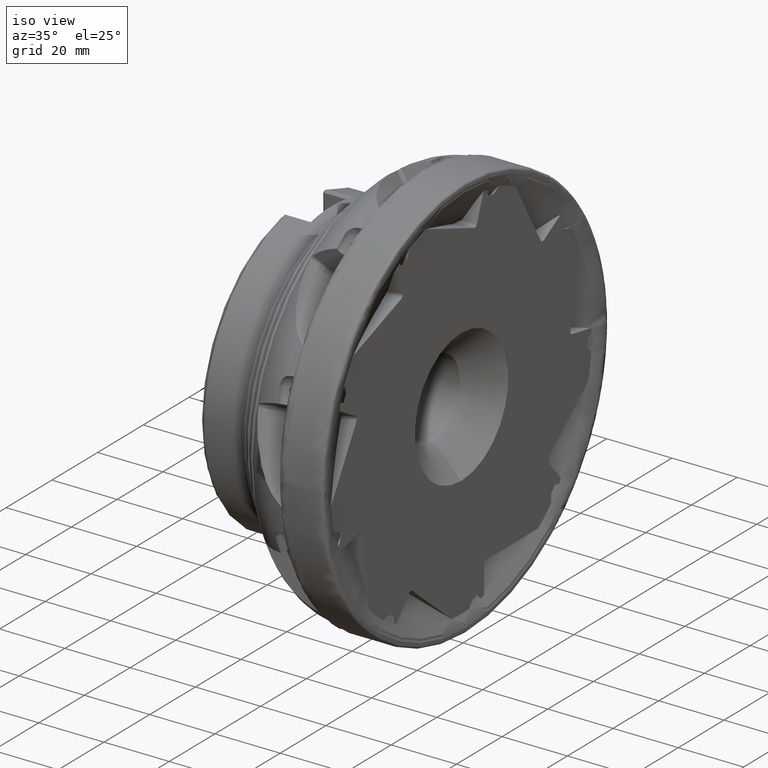
[diagram: clean part render]
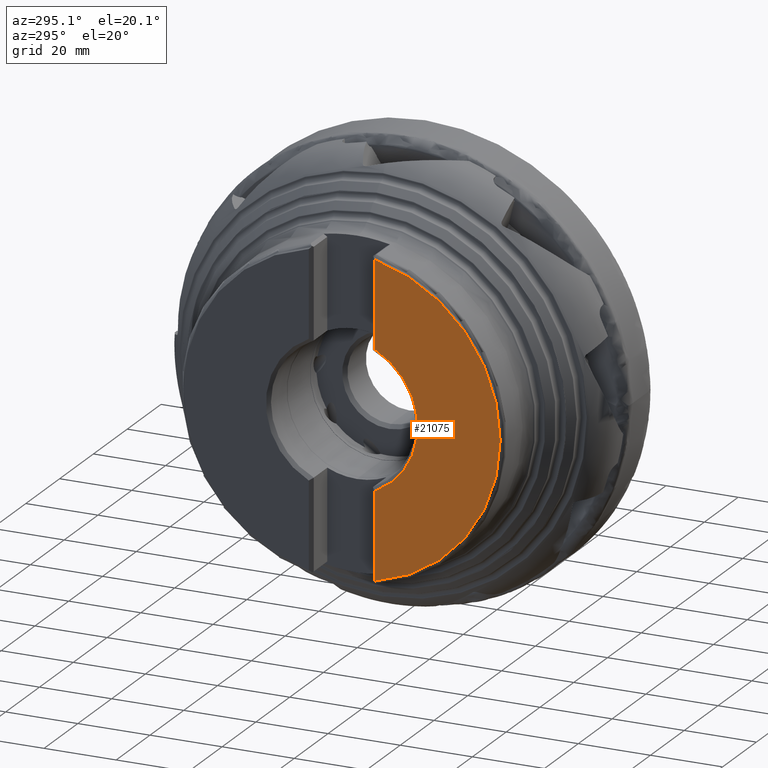
[diagram: tour spotlight — one face highlighted and labeled with its STEP entity id]
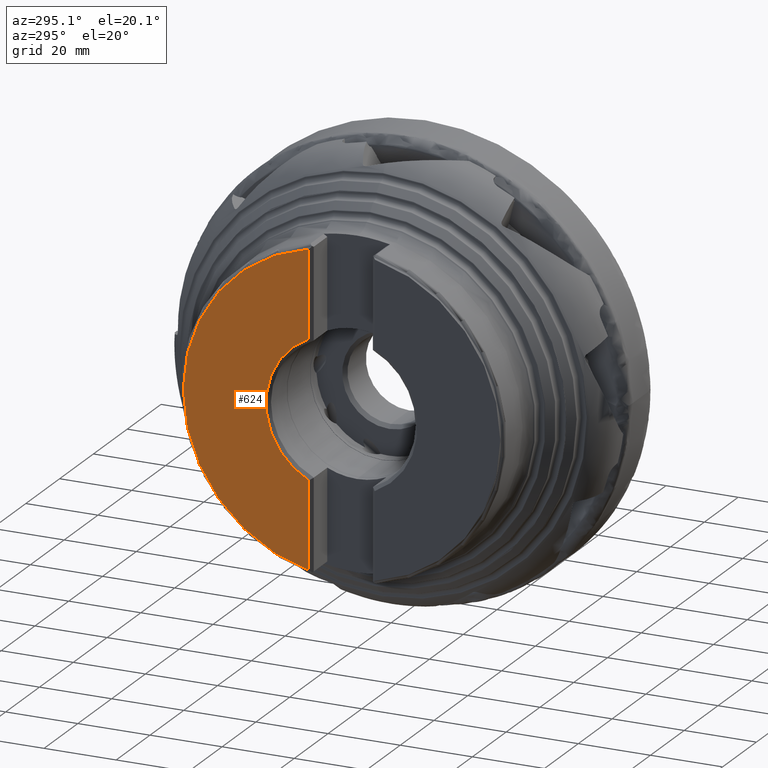
[diagram: tour spotlight — one face highlighted and labeled with its STEP entity id]
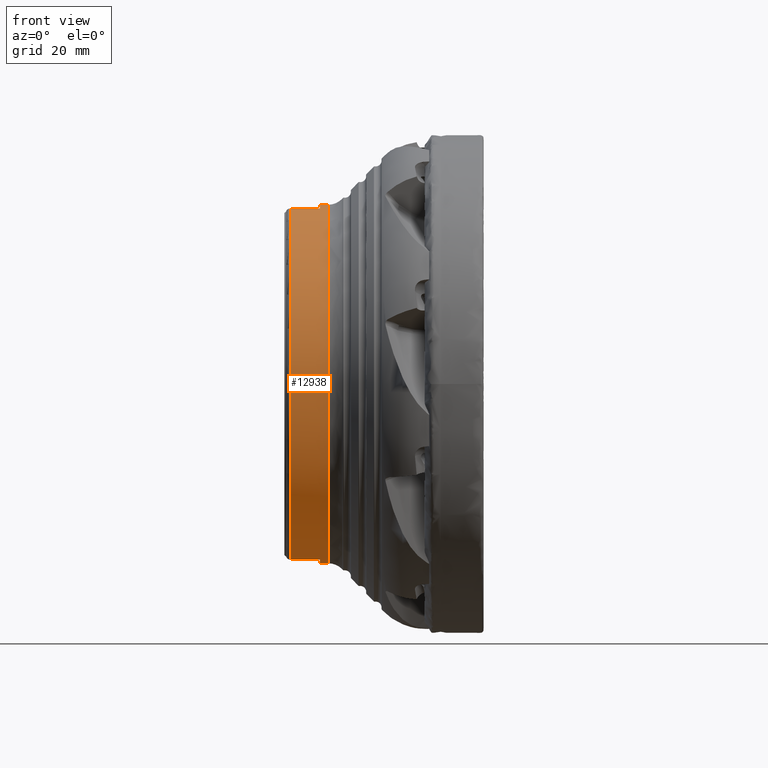
[diagram: tour spotlight — one face highlighted and labeled with its STEP entity id]
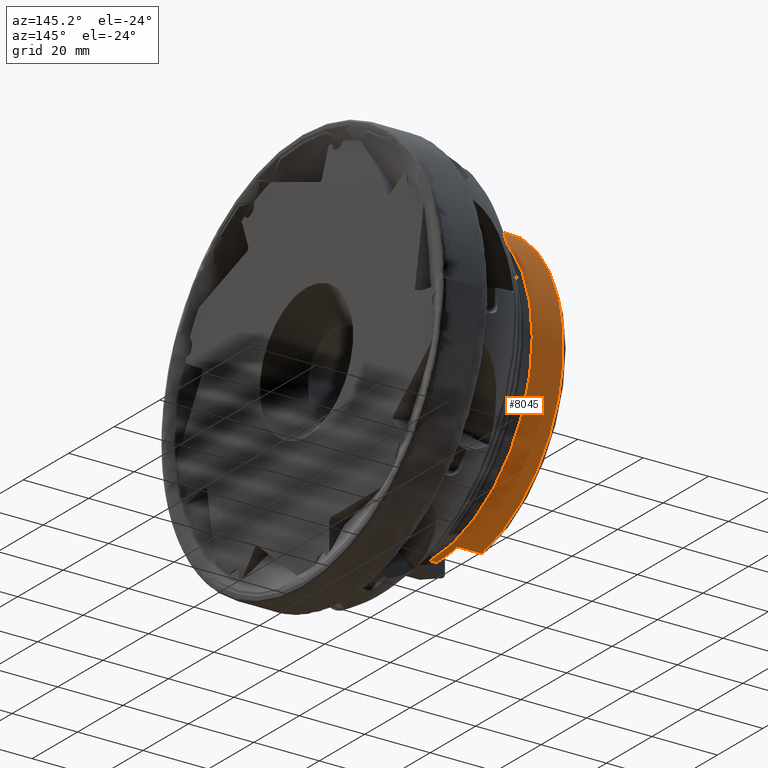
[diagram: tour spotlight — one face highlighted and labeled with its STEP entity id]
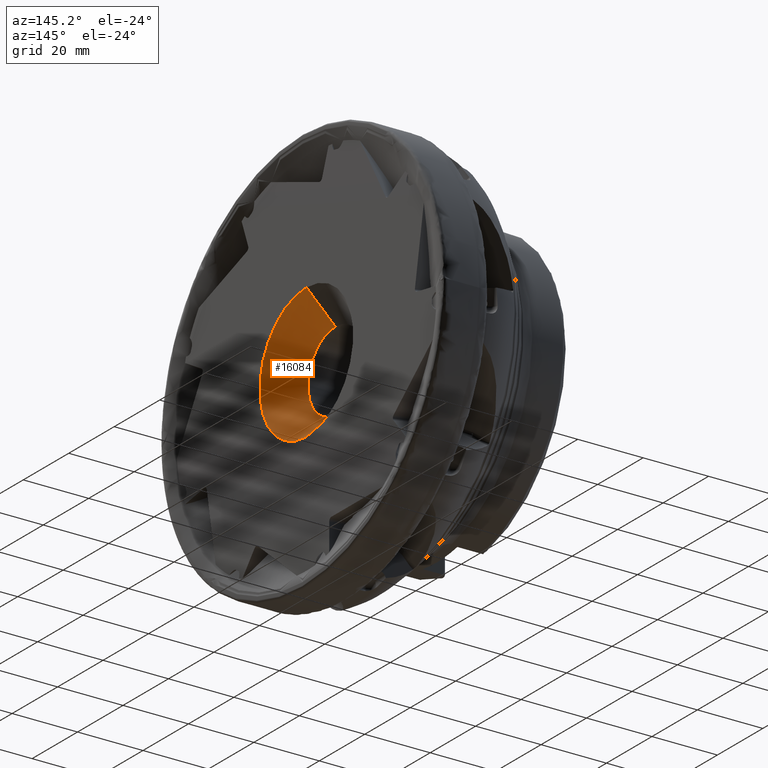
[diagram: tour spotlight — one face highlighted and labeled with its STEP entity id]
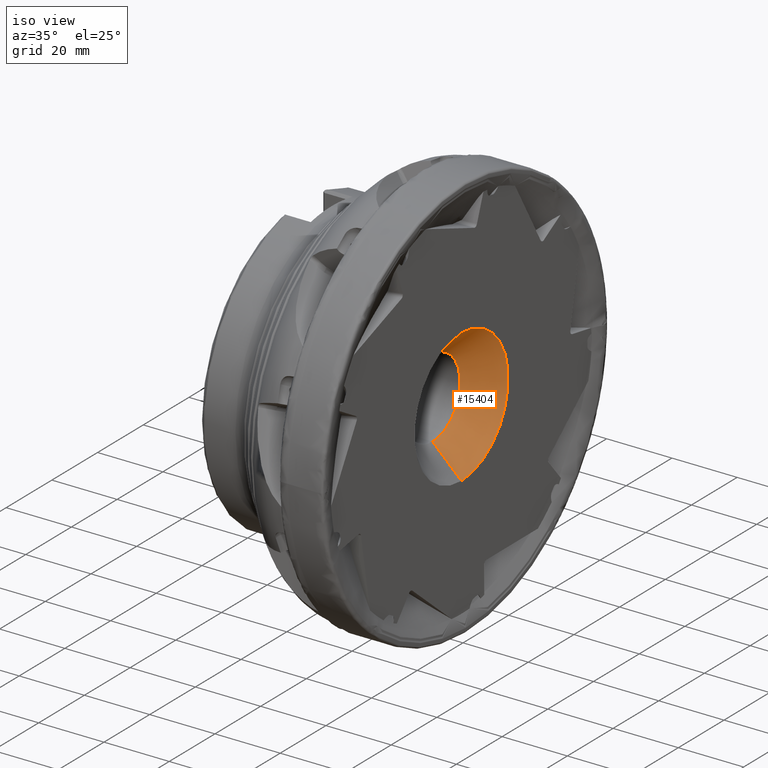
[diagram: tour spotlight — one face highlighted and labeled with its STEP entity id]
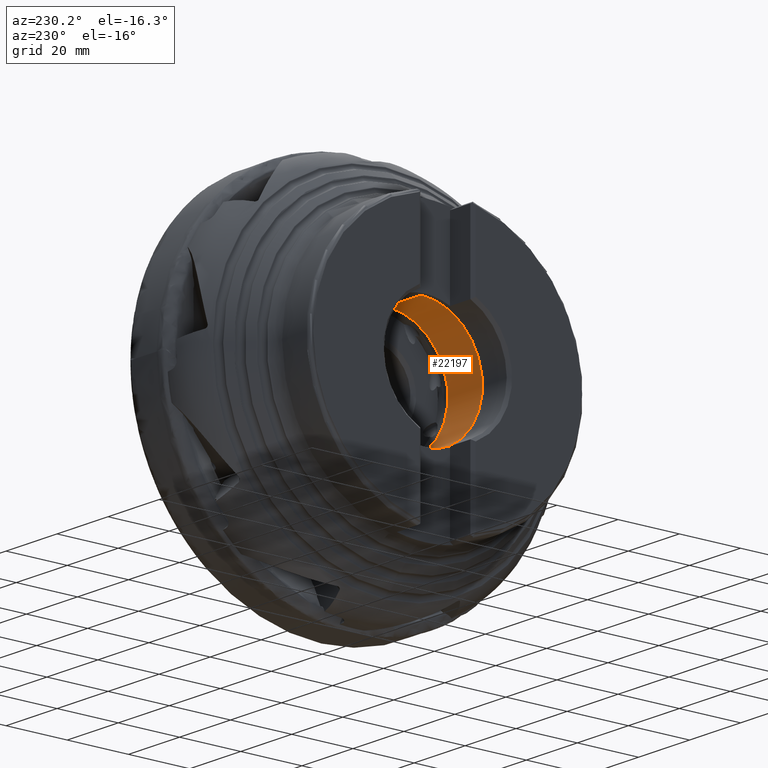
[diagram: tour spotlight — one face highlighted and labeled with its STEP entity id]
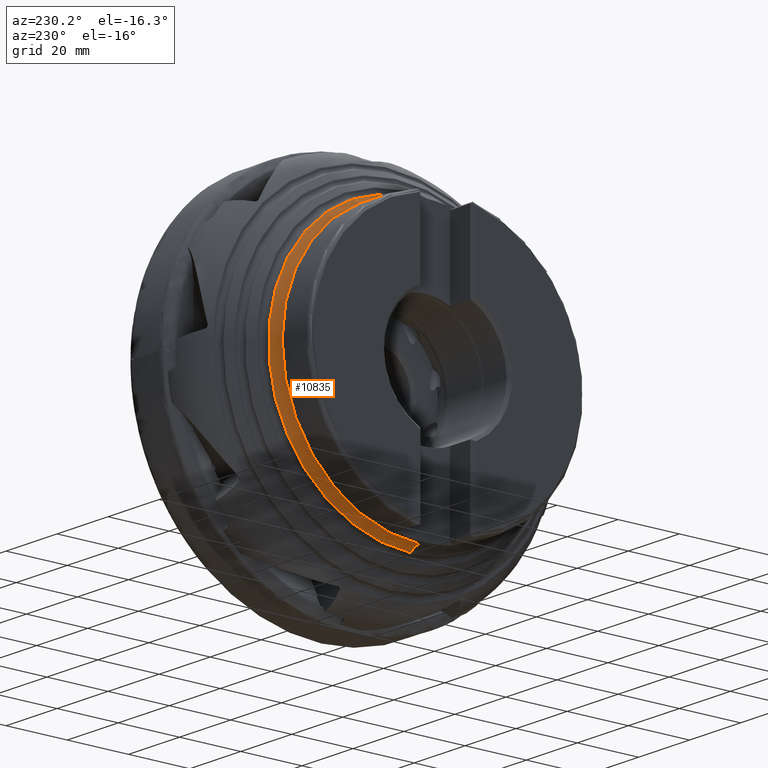
[diagram: tour spotlight — one face highlighted and labeled with its STEP entity id]
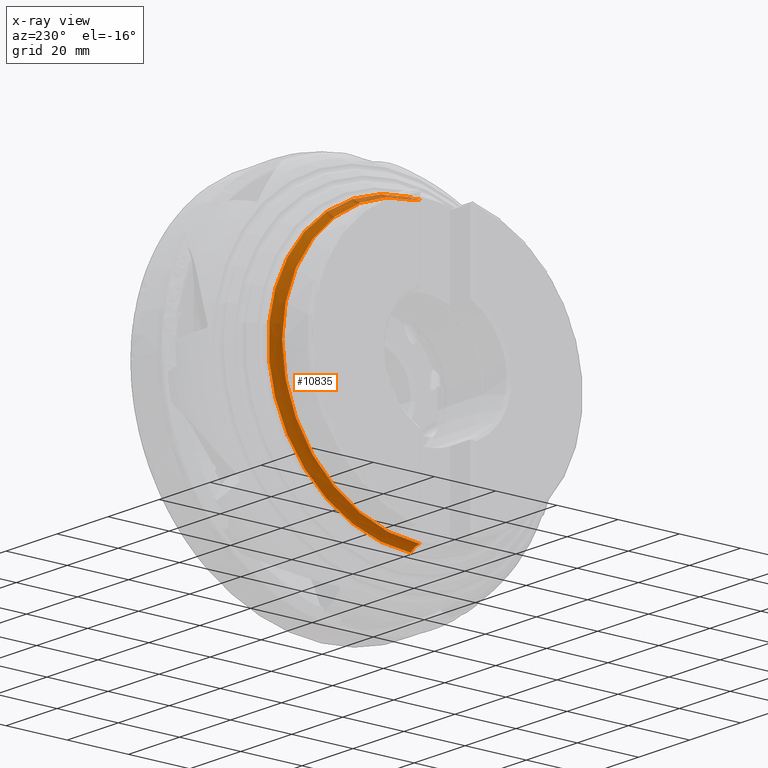
[diagram: x-ray of the same camera — body ghosted, this tour face saturated]
A machine part: a face-by-face anatomy tour. The part has 587 B-rep faces; the first image is the clean iso view, then the 8 largest visible faces are spotlighted one at a time (largest first), each with its STEP entity span.

Face 1 — auxiliary view, entity #21075. In plain terms, the highlighted planar face has unit normal (1, 0, -0).
Definition (entity closure, byte-faithful):
#482 = DIRECTION ( 'NONE',  ( -1.000000000000000000, 0.0000000000000000000, 0.0000000000000000000 ) ) ;
#1637 = DIRECTION ( 'NONE',  ( 1.000000000000000000, 0.0000000000000000000, -0.0000000000000000000 ) ) ;
#2179 = FACE_OUTER_BOUND ( 'NONE', #20133, .T. ) ;
#3441 = CARTESIAN_POINT ( 'NONE',  ( -49.20000000000000300, 0.0000000000000000000, 0.0000000000000000000 ) ) ;
#3813 = DIRECTION ( 'NONE',  ( -0.0000000000000000000, 0.0000000000000000000, -1.000000000000000000 ) ) ;
#4204 = ORIENTED_EDGE ( 'NONE', *, *, #8169, .F. ) ;
#4347 = VERTEX_POINT ( 'NONE', #13240 ) ;
#4482 = EDGE_CURVE ( 'NONE', #21195, #24203, #7041, .T. ) ;
#5821 = VERTEX_POINT ( 'NONE', #7832 ) ;
#6401 = DIRECTION ( 'NONE',  ( 0.0000000000000000000, 0.0000000000000000000, 1.000000000000000000 ) ) ;
#7041 = CIRCLE ( 'NONE', #14719, 43.91978756555322100 ) ;
#7785 = EDGE_CURVE ( 'NONE', #21195, #5821, #17595, .T. ) ;
#7832 = CARTESIAN_POINT ( 'NONE',  ( -49.20000000000000300, -9.150000000000002100, -18.92955691504689900 ) ) ;
#8169 = EDGE_CURVE ( 'NONE', #5821, #4347, #18495, .T. ) ;
#8490 = DIRECTION ( 'NONE',  ( 0.0000000000000000000, 0.0000000000000000000, -1.000000000000000000 ) ) ;
#11472 = DIRECTION ( 'NONE',  ( -1.000000000000000000, 0.0000000000000000000, 0.0000000000000000000 ) ) ;
#13220 = ORIENTED_EDGE ( 'NONE', *, *, #7785, .F. ) ;
#13240 = CARTESIAN_POINT ( 'NONE',  ( -49.20000000000000300, -9.150000000000002100, 18.92955691504689900 ) ) ;
#13600 = LINE ( 'NONE', #16292, #23588 ) ;
#13762 = CARTESIAN_POINT ( 'NONE',  ( -49.20000000000000300, -9.150000000000002100, -49.99999999999999300 ) ) ;
#13843 = VECTOR ( 'NONE', #20310, 1000.000000000000000 ) ;
#14719 = AXIS2_PLACEMENT_3D ( 'NONE', #24382, #482, #8490 ) ;
#15315 = DIRECTION ( 'NONE',  ( 0.0000000000000000000, 0.0000000000000000000, -1.000000000000000000 ) ) ;
#15465 = EDGE_CURVE ( 'NONE', #4347, #24203, #13600, .T. ) ;
#16292 = CARTESIAN_POINT ( 'NONE',  ( -49.20000000000000300, -9.150000000000002100, -49.99999999999999300 ) ) ;
#17595 = LINE ( 'NONE', #13762, #13843 ) ;
#18113 = CARTESIAN_POINT ( 'NONE',  ( -49.20000000000000300, -9.150000000000002100, -42.95608501486690800 ) ) ;
#18495 = CIRCLE ( 'NONE', #25329, 21.02499999999999900 ) ;
#19550 = CARTESIAN_POINT ( 'NONE',  ( -49.20000000000000300, -6.025262251804978400E-015, 0.0000000000000000000 ) ) ;
#19585 = ORIENTED_EDGE ( 'NONE', *, *, #15465, .F. ) ;
#20133 = EDGE_LOOP ( 'NONE', ( #4204, #13220, #21165, #19585 ) ) ;
#20310 = DIRECTION ( 'NONE',  ( 0.0000000000000000000, 0.0000000000000000000, 1.000000000000000000 ) ) ;
#21075 = ADVANCED_FACE ( 'NONE', ( #2179 ), #25549, .F. ) ;
#21165 = ORIENTED_EDGE ( 'NONE', *, *, #4482, .T. ) ;
#21195 = VERTEX_POINT ( 'NONE', #18113 ) ;
#21478 = CARTESIAN_POINT ( 'NONE',  ( -49.20000000000000300, -9.150000000000002100, 42.95608501485352800 ) ) ;
#23588 = VECTOR ( 'NONE', #6401, 1000.000000000000000 ) ;
#24203 = VERTEX_POINT ( 'NONE', #21478 ) ;
#24382 = CARTESIAN_POINT ( 'NONE',  ( -49.20000000000000300, 0.0000000000000000000, 0.0000000000000000000 ) ) ;
#25329 = AXIS2_PLACEMENT_3D ( 'NONE', #3441, #11472, #15315 ) ;
#25465 = AXIS2_PLACEMENT_3D ( 'NONE', #19550, #1637, #3813 ) ;
#25549 = PLANE ( 'NONE',  #25465 ) ;

Face 2 — auxiliary view, entity #624. In plain terms, the highlighted planar face has unit normal (1, 0, -0).
Definition (entity closure, byte-faithful):
#6 = ORIENTED_EDGE ( 'NONE', *, *, #8329, .T. ) ;
#624 = ADVANCED_FACE ( 'NONE', ( #11866 ), #2405, .F. ) ;
#1873 = ORIENTED_EDGE ( 'NONE', *, *, #9862, .F. ) ;
#2189 = DIRECTION ( 'NONE',  ( 0.0000000000000000000, 0.0000000000000000000, -1.000000000000000000 ) ) ;
#2405 = PLANE ( 'NONE',  #6267 ) ;
#4133 = DIRECTION ( 'NONE',  ( -1.000000000000000000, 0.0000000000000000000, 0.0000000000000000000 ) ) ;
#5219 = EDGE_CURVE ( 'NONE', #12284, #21887, #20163, .T. ) ;
#6267 = AXIS2_PLACEMENT_3D ( 'NONE', #18460, #6483, #20641 ) ;
#6483 = DIRECTION ( 'NONE',  ( 1.000000000000000000, 0.0000000000000000000, -0.0000000000000000000 ) ) ;
#8240 = VERTEX_POINT ( 'NONE', #11981 ) ;
#8303 = CIRCLE ( 'NONE', #14329, 21.02499999999999900 ) ;
#8329 = EDGE_CURVE ( 'NONE', #16961, #21887, #9728, .T. ) ;
#9728 = CIRCLE ( 'NONE', #22159, 43.91978756555322100 ) ;
#9862 = EDGE_CURVE ( 'NONE', #16961, #8240, #17557, .T. ) ;
#10818 = CARTESIAN_POINT ( 'NONE',  ( -49.20000000000000300, 9.149999999999991500, 42.95608501485352800 ) ) ;
#10871 = DIRECTION ( 'NONE',  ( 0.0000000000000000000, 0.0000000000000000000, -1.000000000000000000 ) ) ;
#11665 = CARTESIAN_POINT ( 'NONE',  ( -49.19999999999999600, 9.149999999999984400, -42.95608501485352800 ) ) ;
#11866 = FACE_OUTER_BOUND ( 'NONE', #20647, .T. ) ;
#11981 = CARTESIAN_POINT ( 'NONE',  ( -49.20000000000000300, 9.149999999999991500, 18.92955691504690200 ) ) ;
#12284 = VERTEX_POINT ( 'NONE', #21536 ) ;
#13137 = DIRECTION ( 'NONE',  ( -1.000000000000000000, 0.0000000000000000000, 0.0000000000000000000 ) ) ;
#13696 = CARTESIAN_POINT ( 'NONE',  ( -49.20000000000000300, 9.149999999999991500, -49.99999999999999300 ) ) ;
#14329 = AXIS2_PLACEMENT_3D ( 'NONE', #22832, #13137, #10871 ) ;
#16961 = VERTEX_POINT ( 'NONE', #10818 ) ;
#17557 = LINE ( 'NONE', #13696, #20354 ) ;
#18460 = CARTESIAN_POINT ( 'NONE',  ( -49.20000000000000300, -6.025262251804978400E-015, 0.0000000000000000000 ) ) ;
#19130 = ORIENTED_EDGE ( 'NONE', *, *, #25010, .F. ) ;
#19868 = VECTOR ( 'NONE', #2189, 1000.000000000000000 ) ;
#20163 = LINE ( 'NONE', #24362, #19868 ) ;
#20354 = VECTOR ( 'NONE', #25484, 1000.000000000000000 ) ;
#20641 = DIRECTION ( 'NONE',  ( -0.0000000000000000000, 0.0000000000000000000, -1.000000000000000000 ) ) ;
#20647 = EDGE_LOOP ( 'NONE', ( #6, #21344, #19130, #1873 ) ) ;
#21344 = ORIENTED_EDGE ( 'NONE', *, *, #5219, .F. ) ;
#21536 = CARTESIAN_POINT ( 'NONE',  ( -49.20000000000000300, 9.149999999999991500, -18.92955691504690600 ) ) ;
#21887 = VERTEX_POINT ( 'NONE', #11665 ) ;
#22115 = DIRECTION ( 'NONE',  ( 0.0000000000000000000, 0.0000000000000000000, -1.000000000000000000 ) ) ;
#22159 = AXIS2_PLACEMENT_3D ( 'NONE', #22188, #4133, #22115 ) ;
#22188 = CARTESIAN_POINT ( 'NONE',  ( -49.20000000000000300, 0.0000000000000000000, 0.0000000000000000000 ) ) ;
#22832 = CARTESIAN_POINT ( 'NONE',  ( -49.20000000000000300, 0.0000000000000000000, 0.0000000000000000000 ) ) ;
#24362 = CARTESIAN_POINT ( 'NONE',  ( -49.20000000000000300, 9.149999999999991500, -49.99999999999999300 ) ) ;
#25010 = EDGE_CURVE ( 'NONE', #8240, #12284, #8303, .T. ) ;
#25484 = DIRECTION ( 'NONE',  ( 0.0000000000000000000, 0.0000000000000000000, -1.000000000000000000 ) ) ;

Face 3 — front view, entity #12938. In plain terms, the highlighted cylindrical surface (partial cylindrical patch) has radius 45 mm, axis along (1, -0, -0).
Definition (entity closure, byte-faithful):
#170 = DIRECTION ( 'NONE',  ( 0.0000000000000000000, 0.0000000000000000000, -1.000000000000000000 ) ) ;
#236 = EDGE_CURVE ( 'NONE', #12840, #1368, #15338, .T. ) ;
#279 = CIRCLE ( 'NONE', #23553, 44.99999999999999300 ) ;
#1368 = VERTEX_POINT ( 'NONE', #12729 ) ;
#2682 = CARTESIAN_POINT ( 'NONE',  ( -47.75000000000000000, -9.170586121755652800, 44.05565060447368400 ) ) ;
#2901 = ORIENTED_EDGE ( 'NONE', *, *, #9730, .F. ) ;
#3039 = EDGE_CURVE ( 'NONE', #4913, #23889, #9268, .T. ) ;
#3856 = EDGE_CURVE ( 'NONE', #14438, #10893, #23354, .T. ) ;
#4341 = DIRECTION ( 'NONE',  ( 1.000000000000000000, -0.0000000000000000000, -0.0000000000000000000 ) ) ;
#4532 = CARTESIAN_POINT ( 'NONE',  ( -40.25000000000000000, -9.170586121755665200, 44.05565060447368400 ) ) ;
#4549 = AXIS2_PLACEMENT_3D ( 'NONE', #6138, #20142, #12080 ) ;
#4913 = VERTEX_POINT ( 'NONE', #6093 ) ;
#5359 = VECTOR ( 'NONE', #7613, 1000.000000000000000 ) ;
#6093 = CARTESIAN_POINT ( 'NONE',  ( -40.25000000000000000, 0.0000000000000000000, -45.00000000000000000 ) ) ;
#6138 = CARTESIAN_POINT ( 'NONE',  ( -38.25000000000000700, 0.0000000000000000000, 0.0000000000000000000 ) ) ;
#6439 = ORIENTED_EDGE ( 'NONE', *, *, #12047, .T. ) ;
#7452 = CARTESIAN_POINT ( 'NONE',  ( 0.0000000000000000000, 0.0000000000000000000, 0.0000000000000000000 ) ) ;
#7514 = VERTEX_POINT ( 'NONE', #10891 ) ;
#7517 = CARTESIAN_POINT ( 'NONE',  ( 0.0000000000000000000, 5.510910596163089600E-015, 45.00000000000000000 ) ) ;
#7613 = DIRECTION ( 'NONE',  ( 1.000000000000000000, -0.0000000000000000000, -0.0000000000000000000 ) ) ;
#7806 = AXIS2_PLACEMENT_3D ( 'NONE', #7452, #15860, #20132 ) ;
#7823 = CIRCLE ( 'NONE', #18513, 45.00000000000000000 ) ;
#8141 = EDGE_CURVE ( 'NONE', #10759, #7514, #9414, .T. ) ;
#9268 = LINE ( 'NONE', #20234, #11471 ) ;
#9414 = LINE ( 'NONE', #7517, #5359 ) ;
#9730 = EDGE_CURVE ( 'NONE', #14438, #10759, #7823, .T. ) ;
#9801 = AXIS2_PLACEMENT_3D ( 'NONE', #11984, #16023, #22192 ) ;
#10759 = VERTEX_POINT ( 'NONE', #22019 ) ;
#10891 = CARTESIAN_POINT ( 'NONE',  ( -38.25000000000000700, 5.602754080404245300E-015, 45.00000000000000000 ) ) ;
#10893 = VERTEX_POINT ( 'NONE', #2682 ) ;
#10907 = ORIENTED_EDGE ( 'NONE', *, *, #25284, .F. ) ;
#11471 = VECTOR ( 'NONE', #12784, 1000.000000000000000 ) ;
#11560 = ORIENTED_EDGE ( 'NONE', *, *, #236, .T. ) ;
#11984 = CARTESIAN_POINT ( 'NONE',  ( -40.25000000000000000, 0.0000000000000000000, 0.0000000000000000000 ) ) ;
#12047 = EDGE_CURVE ( 'NONE', #10893, #12840, #279, .T. ) ;
#12080 = DIRECTION ( 'NONE',  ( 0.0000000000000000000, 0.0000000000000000000, -1.000000000000000000 ) ) ;
#12729 = CARTESIAN_POINT ( 'NONE',  ( -40.25000000000000000, -9.170586121755661700, -44.05565060447368400 ) ) ;
#12784 = DIRECTION ( 'NONE',  ( 1.000000000000000000, -0.0000000000000000000, -0.0000000000000000000 ) ) ;
#12840 = VERTEX_POINT ( 'NONE', #25538 ) ;
#12938 = ADVANCED_FACE ( 'NONE', ( #24913 ), #16804, .T. ) ;
#13550 = ORIENTED_EDGE ( 'NONE', *, *, #3856, .T. ) ;
#13862 = ORIENTED_EDGE ( 'NONE', *, *, #22012, .F. ) ;
#13948 = VECTOR ( 'NONE', #14921, 1000.000000000000000 ) ;
#14033 = CIRCLE ( 'NONE', #4549, 45.00000000000000000 ) ;
#14438 = VERTEX_POINT ( 'NONE', #4532 ) ;
#14632 = DIRECTION ( 'NONE',  ( 1.000000000000000000, -0.0000000000000000000, -0.0000000000000000000 ) ) ;
#14921 = DIRECTION ( 'NONE',  ( -1.000000000000000000, 0.0000000000000000000, 0.0000000000000000000 ) ) ;
#15338 = LINE ( 'NONE', #22321, #18465 ) ;
#15679 = CARTESIAN_POINT ( 'NONE',  ( -38.25000000000000700, 0.0000000000000000000, -45.00000000000000000 ) ) ;
#15860 = DIRECTION ( 'NONE',  ( 1.000000000000000000, -0.0000000000000000000, -0.0000000000000000000 ) ) ;
#16023 = DIRECTION ( 'NONE',  ( -1.000000000000000000, -0.0000000000000000000, -0.0000000000000000000 ) ) ;
#16609 = ORIENTED_EDGE ( 'NONE', *, *, #3039, .T. ) ;
#16804 = CYLINDRICAL_SURFACE ( 'NONE', #7806, 45.00000000000000000 ) ;
#17396 = DIRECTION ( 'NONE',  ( -1.000000000000000000, -0.0000000000000000000, -0.0000000000000000000 ) ) ;
#18140 = CARTESIAN_POINT ( 'NONE',  ( -47.75000000000000000, 0.0000000000000000000, 0.0000000000000000000 ) ) ;
#18465 = VECTOR ( 'NONE', #14632, 1000.000000000000000 ) ;
#18513 = AXIS2_PLACEMENT_3D ( 'NONE', #25055, #17396, #21316 ) ;
#18636 = CIRCLE ( 'NONE', #9801, 45.00000000000000000 ) ;
#19951 = EDGE_LOOP ( 'NONE', ( #22173, #2901, #13550, #6439, #11560, #10907, #16609, #13862 ) ) ;
#20132 = DIRECTION ( 'NONE',  ( 0.0000000000000000000, 0.0000000000000000000, -1.000000000000000000 ) ) ;
#20142 = DIRECTION ( 'NONE',  ( 1.000000000000000000, -0.0000000000000000000, -0.0000000000000000000 ) ) ;
#20234 = CARTESIAN_POINT ( 'NONE',  ( 0.0000000000000000000, 0.0000000000000000000, -45.00000000000000000 ) ) ;
#21316 = DIRECTION ( 'NONE',  ( 0.0000000000000000000, 7.105427357601001100E-015, -1.000000000000000000 ) ) ;
#22012 = EDGE_CURVE ( 'NONE', #7514, #23889, #14033, .T. ) ;
#22019 = CARTESIAN_POINT ( 'NONE',  ( -40.25000000000000000, 5.510910596163089600E-015, 45.00000000000000000 ) ) ;
#22173 = ORIENTED_EDGE ( 'NONE', *, *, #8141, .F. ) ;
#22192 = DIRECTION ( 'NONE',  ( 0.0000000000000000000, 0.0000000000000000000, -1.000000000000000000 ) ) ;
#22321 = CARTESIAN_POINT ( 'NONE',  ( -6.915983115732195800E-030, -9.170586121755679400, -44.05565060447368400 ) ) ;
#22699 = CARTESIAN_POINT ( 'NONE',  ( -8.452868252561573000E-030, -9.170586121755683000, 44.05565060447367600 ) ) ;
#23354 = LINE ( 'NONE', #22699, #13948 ) ;
#23553 = AXIS2_PLACEMENT_3D ( 'NONE', #18140, #4341, #170 ) ;
#23889 = VERTEX_POINT ( 'NONE', #15679 ) ;
#24913 = FACE_OUTER_BOUND ( 'NONE', #19951, .T. ) ;
#25055 = CARTESIAN_POINT ( 'NONE',  ( -40.25000000000000000, 0.0000000000000000000, 0.0000000000000000000 ) ) ;
#25284 = EDGE_CURVE ( 'NONE', #4913, #1368, #18636, .T. ) ;
#25538 = CARTESIAN_POINT ( 'NONE',  ( -47.75000000000000000, -9.170586121755659900, -44.05565060447367600 ) ) ;

Face 4 — auxiliary view, entity #8045. In plain terms, the highlighted cylindrical surface (partial cylindrical patch) has radius 45 mm, axis along (1, -0, -0).
Definition (entity closure, byte-faithful):
#112 = CARTESIAN_POINT ( 'NONE',  ( -47.75000000000000000, 9.170586121755672300, 44.05565060447367600 ) ) ;
#138 = EDGE_LOOP ( 'NONE', ( #7584, #17075, #5661, #11111, #13472, #12389, #10156, #23748 ) ) ;
#920 = DIRECTION ( 'NONE',  ( 1.000000000000000000, -0.0000000000000000000, -0.0000000000000000000 ) ) ;
#1087 = DIRECTION ( 'NONE',  ( 1.000000000000000000, -0.0000000000000000000, -0.0000000000000000000 ) ) ;
#1133 = VERTEX_POINT ( 'NONE', #9585 ) ;
#3039 = EDGE_CURVE ( 'NONE', #4913, #23889, #9268, .T. ) ;
#3226 = DIRECTION ( 'NONE',  ( 0.0000000000000000000, 0.0000000000000000000, -1.000000000000000000 ) ) ;
#4913 = VERTEX_POINT ( 'NONE', #6093 ) ;
#5250 = DIRECTION ( 'NONE',  ( -1.000000000000000000, -0.0000000000000000000, -0.0000000000000000000 ) ) ;
#5359 = VECTOR ( 'NONE', #7613, 1000.000000000000000 ) ;
#5661 = ORIENTED_EDGE ( 'NONE', *, *, #14538, .F. ) ;
#5876 = DIRECTION ( 'NONE',  ( 1.000000000000000000, -0.0000000000000000000, -0.0000000000000000000 ) ) ;
#6093 = CARTESIAN_POINT ( 'NONE',  ( -40.25000000000000000, 0.0000000000000000000, -45.00000000000000000 ) ) ;
#7465 = DIRECTION ( 'NONE',  ( 1.000000000000000000, -0.0000000000000000000, -0.0000000000000000000 ) ) ;
#7514 = VERTEX_POINT ( 'NONE', #10891 ) ;
#7517 = CARTESIAN_POINT ( 'NONE',  ( 0.0000000000000000000, 5.510910596163089600E-015, 45.00000000000000000 ) ) ;
#7584 = ORIENTED_EDGE ( 'NONE', *, *, #12978, .F. ) ;
#7613 = DIRECTION ( 'NONE',  ( 1.000000000000000000, -0.0000000000000000000, -0.0000000000000000000 ) ) ;
#8045 = ADVANCED_FACE ( 'NONE', ( #11635 ), #21644, .T. ) ;
#8122 = VERTEX_POINT ( 'NONE', #25270 ) ;
#8141 = EDGE_CURVE ( 'NONE', #10759, #7514, #9414, .T. ) ;
#9268 = LINE ( 'NONE', #20234, #11471 ) ;
#9275 = AXIS2_PLACEMENT_3D ( 'NONE', #22826, #920, #14883 ) ;
#9350 = DIRECTION ( 'NONE',  ( -1.000000000000000000, 0.0000000000000000000, 0.0000000000000000000 ) ) ;
#9414 = LINE ( 'NONE', #7517, #5359 ) ;
#9585 = CARTESIAN_POINT ( 'NONE',  ( -47.75000000000000000, 9.170586121755675900, -44.05565060447367600 ) ) ;
#10156 = ORIENTED_EDGE ( 'NONE', *, *, #19260, .T. ) ;
#10649 = AXIS2_PLACEMENT_3D ( 'NONE', #20622, #5250, #13290 ) ;
#10711 = VERTEX_POINT ( 'NONE', #25762 ) ;
#10759 = VERTEX_POINT ( 'NONE', #22019 ) ;
#10891 = CARTESIAN_POINT ( 'NONE',  ( -38.25000000000000700, 5.602754080404245300E-015, 45.00000000000000000 ) ) ;
#11005 = CIRCLE ( 'NONE', #21270, 44.99999999999999300 ) ;
#11063 = VECTOR ( 'NONE', #5876, 1000.000000000000000 ) ;
#11111 = ORIENTED_EDGE ( 'NONE', *, *, #3039, .F. ) ;
#11471 = VECTOR ( 'NONE', #12784, 1000.000000000000000 ) ;
#11635 = FACE_OUTER_BOUND ( 'NONE', #138, .T. ) ;
#11689 = LINE ( 'NONE', #17848, #11063 ) ;
#12389 = ORIENTED_EDGE ( 'NONE', *, *, #22792, .T. ) ;
#12784 = DIRECTION ( 'NONE',  ( 1.000000000000000000, -0.0000000000000000000, -0.0000000000000000000 ) ) ;
#12978 = EDGE_CURVE ( 'NONE', #10759, #10711, #16186, .T. ) ;
#13047 = CARTESIAN_POINT ( 'NONE',  ( -47.75000000000000000, 0.0000000000000000000, 0.0000000000000000000 ) ) ;
#13290 = DIRECTION ( 'NONE',  ( 0.0000000000000000000, -8.881784197001250700E-015, -1.000000000000000000 ) ) ;
#13381 = CARTESIAN_POINT ( 'NONE',  ( -8.452868252561573000E-030, 9.170586121755697200, -44.05565060447367600 ) ) ;
#13472 = ORIENTED_EDGE ( 'NONE', *, *, #25480, .F. ) ;
#13841 = DIRECTION ( 'NONE',  ( -1.000000000000000000, -0.0000000000000000000, -0.0000000000000000000 ) ) ;
#14361 = AXIS2_PLACEMENT_3D ( 'NONE', #25793, #13841, #24128 ) ;
#14538 = EDGE_CURVE ( 'NONE', #23889, #7514, #24258, .T. ) ;
#14883 = DIRECTION ( 'NONE',  ( 0.0000000000000000000, 0.0000000000000000000, -1.000000000000000000 ) ) ;
#15679 = CARTESIAN_POINT ( 'NONE',  ( -38.25000000000000700, 0.0000000000000000000, -45.00000000000000000 ) ) ;
#16186 = CIRCLE ( 'NONE', #14361, 45.00000000000000000 ) ;
#16314 = EDGE_CURVE ( 'NONE', #20316, #10711, #11689, .T. ) ;
#17075 = ORIENTED_EDGE ( 'NONE', *, *, #8141, .T. ) ;
#17848 = CARTESIAN_POINT ( 'NONE',  ( -6.915983115732195800E-030, 9.170586121755693700, 44.05565060447368400 ) ) ;
#19260 = EDGE_CURVE ( 'NONE', #1133, #20316, #11005, .T. ) ;
#19433 = AXIS2_PLACEMENT_3D ( 'NONE', #21547, #7465, #3226 ) ;
#20234 = CARTESIAN_POINT ( 'NONE',  ( 0.0000000000000000000, 0.0000000000000000000, -45.00000000000000000 ) ) ;
#20316 = VERTEX_POINT ( 'NONE', #112 ) ;
#20588 = LINE ( 'NONE', #13381, #21223 ) ;
#20622 = CARTESIAN_POINT ( 'NONE',  ( -40.25000000000000000, 0.0000000000000000000, 0.0000000000000000000 ) ) ;
#21223 = VECTOR ( 'NONE', #9350, 1000.000000000000000 ) ;
#21270 = AXIS2_PLACEMENT_3D ( 'NONE', #13047, #1087, #25097 ) ;
#21547 = CARTESIAN_POINT ( 'NONE',  ( -38.25000000000000700, 0.0000000000000000000, 0.0000000000000000000 ) ) ;
#21644 = CYLINDRICAL_SURFACE ( 'NONE', #9275, 45.00000000000000000 ) ;
#22019 = CARTESIAN_POINT ( 'NONE',  ( -40.25000000000000000, 5.510910596163089600E-015, 45.00000000000000000 ) ) ;
#22792 = EDGE_CURVE ( 'NONE', #8122, #1133, #20588, .T. ) ;
#22826 = CARTESIAN_POINT ( 'NONE',  ( 0.0000000000000000000, 0.0000000000000000000, 0.0000000000000000000 ) ) ;
#23748 = ORIENTED_EDGE ( 'NONE', *, *, #16314, .T. ) ;
#23889 = VERTEX_POINT ( 'NONE', #15679 ) ;
#24128 = DIRECTION ( 'NONE',  ( 0.0000000000000000000, 0.0000000000000000000, -1.000000000000000000 ) ) ;
#24258 = CIRCLE ( 'NONE', #19433, 45.00000000000000000 ) ;
#24637 = CIRCLE ( 'NONE', #10649, 45.00000000000000000 ) ;
#25097 = DIRECTION ( 'NONE',  ( 0.0000000000000000000, 0.0000000000000000000, -1.000000000000000000 ) ) ;
#25270 = CARTESIAN_POINT ( 'NONE',  ( -40.25000000000000000, 9.170586121755679400, -44.05565060447368400 ) ) ;
#25480 = EDGE_CURVE ( 'NONE', #8122, #4913, #24637, .T. ) ;
#25762 = CARTESIAN_POINT ( 'NONE',  ( -40.25000000000000000, 9.170586121755675900, 44.05565060447368400 ) ) ;
#25793 = CARTESIAN_POINT ( 'NONE',  ( -40.25000000000000000, 0.0000000000000000000, 0.0000000000000000000 ) ) ;

Face 5 — auxiliary view, entity #16084. In plain terms, the highlighted conical surface has half-angle 44 deg.
Definition (entity closure, byte-faithful):
#1681 = DIRECTION ( 'NONE',  ( 1.000000000000000000, -0.0000000000000000000, -0.0000000000000000000 ) ) ;
#1861 = CARTESIAN_POINT ( 'NONE',  ( -0.5000000000000000000, 2.510525938252074500E-015, 20.50000000000000000 ) ) ;
#2363 = AXIS2_PLACEMENT_3D ( 'NONE', #24934, #17081, #14894 ) ;
#3642 = CARTESIAN_POINT ( 'NONE',  ( -9.302007667219928800, 1.469576158976824100E-015, 12.00000000000000200 ) ) ;
#3744 = ORIENTED_EDGE ( 'NONE', *, *, #14111, .T. ) ;
#5287 = EDGE_CURVE ( 'NONE', #13264, #23301, #18915, .T. ) ;
#6051 = DIRECTION ( 'NONE',  ( 0.7193398003386545200, 8.507111498835231200E-017, 0.6946583704589938100 ) ) ;
#8207 = AXIS2_PLACEMENT_3D ( 'NONE', #25722, #25807, #15787 ) ;
#8320 = CIRCLE ( 'NONE', #23258, 20.50000000000000000 ) ;
#9398 = ORIENTED_EDGE ( 'NONE', *, *, #23909, .T. ) ;
#10860 = LINE ( 'NONE', #1861, #22405 ) ;
#12934 = VERTEX_POINT ( 'NONE', #3642 ) ;
#13264 = VERTEX_POINT ( 'NONE', #25172 ) ;
#13909 = VECTOR ( 'NONE', #14246, 1000.000000000000000 ) ;
#14111 = EDGE_CURVE ( 'NONE', #20097, #23301, #8320, .T. ) ;
#14219 = FACE_OUTER_BOUND ( 'NONE', #15101, .T. ) ;
#14237 = ORIENTED_EDGE ( 'NONE', *, *, #15392, .F. ) ;
#14246 = DIRECTION ( 'NONE',  ( 0.7193398003386545200, 0.0000000000000000000, -0.6946583704589938100 ) ) ;
#14894 = DIRECTION ( 'NONE',  ( 0.0000000000000000000, 0.0000000000000000000, -1.000000000000000000 ) ) ;
#15101 = EDGE_LOOP ( 'NONE', ( #14237, #9398, #3744, #18790 ) ) ;
#15392 = EDGE_CURVE ( 'NONE', #12934, #13264, #16437, .T. ) ;
#15458 = CONICAL_SURFACE ( 'NONE', #2363, 20.50000000000000000, 0.7679448708775001900 ) ;
#15787 = DIRECTION ( 'NONE',  ( 0.0000000000000000000, 0.0000000000000000000, -1.000000000000000000 ) ) ;
#16084 = ADVANCED_FACE ( 'NONE', ( #14219 ), #15458, .F. ) ;
#16321 = CARTESIAN_POINT ( 'NONE',  ( -0.5000000000000000000, 2.510525938252074500E-015, 20.50000000000000000 ) ) ;
#16437 = CIRCLE ( 'NONE', #8207, 12.00000000000000000 ) ;
#16441 = CARTESIAN_POINT ( 'NONE',  ( -0.5000000000000000000, 0.0000000000000000000, -20.50000000000000000 ) ) ;
#17081 = DIRECTION ( 'NONE',  ( 1.000000000000000000, -0.0000000000000000000, -0.0000000000000000000 ) ) ;
#18790 = ORIENTED_EDGE ( 'NONE', *, *, #5287, .F. ) ;
#18915 = LINE ( 'NONE', #16441, #13909 ) ;
#20097 = VERTEX_POINT ( 'NONE', #16321 ) ;
#21501 = DIRECTION ( 'NONE',  ( 0.0000000000000000000, 0.0000000000000000000, -1.000000000000000000 ) ) ;
#22405 = VECTOR ( 'NONE', #6051, 1000.000000000000000 ) ;
#23258 = AXIS2_PLACEMENT_3D ( 'NONE', #25583, #1681, #21501 ) ;
#23301 = VERTEX_POINT ( 'NONE', #25233 ) ;
#23909 = EDGE_CURVE ( 'NONE', #12934, #20097, #10860, .T. ) ;
#24934 = CARTESIAN_POINT ( 'NONE',  ( -0.5000000000000000000, 0.0000000000000000000, 0.0000000000000000000 ) ) ;
#25172 = CARTESIAN_POINT ( 'NONE',  ( -9.302007667219928800, 0.0000000000000000000, -12.00000000000000000 ) ) ;
#25233 = CARTESIAN_POINT ( 'NONE',  ( -0.5000000000000000000, 0.0000000000000000000, -20.50000000000000000 ) ) ;
#25583 = CARTESIAN_POINT ( 'NONE',  ( -0.5000000000000000000, 0.0000000000000000000, 0.0000000000000000000 ) ) ;
#25722 = CARTESIAN_POINT ( 'NONE',  ( -9.302007667219928800, 0.0000000000000000000, 0.0000000000000000000 ) ) ;
#25807 = DIRECTION ( 'NONE',  ( 1.000000000000000000, -0.0000000000000000000, -0.0000000000000000000 ) ) ;

Face 6 — iso view, entity #15404. In plain terms, the highlighted conical surface has half-angle 44 deg.
Definition (entity closure, byte-faithful):
#1861 = CARTESIAN_POINT ( 'NONE',  ( -0.5000000000000000000, 2.510525938252074500E-015, 20.50000000000000000 ) ) ;
#3642 = CARTESIAN_POINT ( 'NONE',  ( -9.302007667219928800, 1.469576158976824100E-015, 12.00000000000000200 ) ) ;
#5287 = EDGE_CURVE ( 'NONE', #13264, #23301, #18915, .T. ) ;
#5474 = EDGE_LOOP ( 'NONE', ( #15746, #25187, #8431, #20164 ) ) ;
#6051 = DIRECTION ( 'NONE',  ( 0.7193398003386545200, 8.507111498835231200E-017, 0.6946583704589938100 ) ) ;
#8431 = ORIENTED_EDGE ( 'NONE', *, *, #5287, .T. ) ;
#9044 = CARTESIAN_POINT ( 'NONE',  ( -0.5000000000000000000, 0.0000000000000000000, 0.0000000000000000000 ) ) ;
#9313 = EDGE_CURVE ( 'NONE', #23301, #20097, #25680, .T. ) ;
#10860 = LINE ( 'NONE', #1861, #22405 ) ;
#10868 = DIRECTION ( 'NONE',  ( 1.000000000000000000, -0.0000000000000000000, -0.0000000000000000000 ) ) ;
#10944 = DIRECTION ( 'NONE',  ( 0.0000000000000000000, 0.0000000000000000000, -1.000000000000000000 ) ) ;
#11383 = AXIS2_PLACEMENT_3D ( 'NONE', #19089, #10868, #10944 ) ;
#11805 = AXIS2_PLACEMENT_3D ( 'NONE', #9044, #18938, #23030 ) ;
#12934 = VERTEX_POINT ( 'NONE', #3642 ) ;
#13264 = VERTEX_POINT ( 'NONE', #25172 ) ;
#13909 = VECTOR ( 'NONE', #14246, 1000.000000000000000 ) ;
#14246 = DIRECTION ( 'NONE',  ( 0.7193398003386545200, 0.0000000000000000000, -0.6946583704589938100 ) ) ;
#14523 = CONICAL_SURFACE ( 'NONE', #19287, 20.50000000000000000, 0.7679448708775001900 ) ;
#14882 = EDGE_CURVE ( 'NONE', #13264, #12934, #15175, .T. ) ;
#15016 = DIRECTION ( 'NONE',  ( 1.000000000000000000, -0.0000000000000000000, -0.0000000000000000000 ) ) ;
#15175 = CIRCLE ( 'NONE', #11383, 12.00000000000000000 ) ;
#15404 = ADVANCED_FACE ( 'NONE', ( #25789 ), #14523, .F. ) ;
#15746 = ORIENTED_EDGE ( 'NONE', *, *, #23909, .F. ) ;
#16321 = CARTESIAN_POINT ( 'NONE',  ( -0.5000000000000000000, 2.510525938252074500E-015, 20.50000000000000000 ) ) ;
#16441 = CARTESIAN_POINT ( 'NONE',  ( -0.5000000000000000000, 0.0000000000000000000, -20.50000000000000000 ) ) ;
#18915 = LINE ( 'NONE', #16441, #13909 ) ;
#18938 = DIRECTION ( 'NONE',  ( 1.000000000000000000, -0.0000000000000000000, -0.0000000000000000000 ) ) ;
#19089 = CARTESIAN_POINT ( 'NONE',  ( -9.302007667219928800, 0.0000000000000000000, 0.0000000000000000000 ) ) ;
#19287 = AXIS2_PLACEMENT_3D ( 'NONE', #22975, #15016, #19814 ) ;
#19814 = DIRECTION ( 'NONE',  ( 0.0000000000000000000, 0.0000000000000000000, -1.000000000000000000 ) ) ;
#20097 = VERTEX_POINT ( 'NONE', #16321 ) ;
#20164 = ORIENTED_EDGE ( 'NONE', *, *, #9313, .T. ) ;
#22405 = VECTOR ( 'NONE', #6051, 1000.000000000000000 ) ;
#22975 = CARTESIAN_POINT ( 'NONE',  ( -0.5000000000000000000, 0.0000000000000000000, 0.0000000000000000000 ) ) ;
#23030 = DIRECTION ( 'NONE',  ( 0.0000000000000000000, 0.0000000000000000000, -1.000000000000000000 ) ) ;
#23301 = VERTEX_POINT ( 'NONE', #25233 ) ;
#23909 = EDGE_CURVE ( 'NONE', #12934, #20097, #10860, .T. ) ;
#25172 = CARTESIAN_POINT ( 'NONE',  ( -9.302007667219928800, 0.0000000000000000000, -12.00000000000000000 ) ) ;
#25187 = ORIENTED_EDGE ( 'NONE', *, *, #14882, .F. ) ;
#25233 = CARTESIAN_POINT ( 'NONE',  ( -0.5000000000000000000, 0.0000000000000000000, -20.50000000000000000 ) ) ;
#25680 = CIRCLE ( 'NONE', #11805, 20.50000000000000000 ) ;
#25789 = FACE_OUTER_BOUND ( 'NONE', #5474, .T. ) ;

Face 7 — auxiliary view, entity #22197. In plain terms, the highlighted cylindrical surface (partial cylindrical patch) has radius 20 mm, axis along (-1, -0, -0).
Definition (entity closure, byte-faithful):
#330 = CIRCLE ( 'NONE', #25609, 20.00000000000000000 ) ;
#854 = DIRECTION ( 'NONE',  ( 0.0000000000000000000, 0.0000000000000000000, 1.000000000000000000 ) ) ;
#1898 = ORIENTED_EDGE ( 'NONE', *, *, #22554, .F. ) ;
#2215 = CARTESIAN_POINT ( 'NONE',  ( -25.25000000000000000, 2.449293598294706500E-015, -20.00000000000000000 ) ) ;
#2328 = CARTESIAN_POINT ( 'NONE',  ( -38.80000000000001100, 2.453886023791508500E-015, -20.00000000000000000 ) ) ;
#3012 = ORIENTED_EDGE ( 'NONE', *, *, #23844, .T. ) ;
#4081 = VERTEX_POINT ( 'NONE', #2328 ) ;
#4179 = LINE ( 'NONE', #16680, #12915 ) ;
#5290 = CARTESIAN_POINT ( 'NONE',  ( -38.80000000000001100, 0.0000000000000000000, 20.00000000000000000 ) ) ;
#6156 = VECTOR ( 'NONE', #15592, 1000.000000000000000 ) ;
#7538 = CARTESIAN_POINT ( 'NONE',  ( -25.25000000000000000, 2.449293598294706500E-015, -20.00000000000000000 ) ) ;
#8074 = ORIENTED_EDGE ( 'NONE', *, *, #20146, .F. ) ;
#9590 = AXIS2_PLACEMENT_3D ( 'NONE', #16370, #14434, #20630 ) ;
#9713 = CARTESIAN_POINT ( 'NONE',  ( -25.25000000000000000, 0.0000000000000000000, 20.00000000000000000 ) ) ;
#12915 = VECTOR ( 'NONE', #22864, 1000.000000000000000 ) ;
#12984 = DIRECTION ( 'NONE',  ( -1.000000000000000000, 0.0000000000000000000, 0.0000000000000000000 ) ) ;
#14434 = DIRECTION ( 'NONE',  ( 1.000000000000000000, -0.0000000000000000000, -0.0000000000000000000 ) ) ;
#15592 = DIRECTION ( 'NONE',  ( -1.000000000000000000, -0.0000000000000000000, -0.0000000000000000000 ) ) ;
#16315 = VERTEX_POINT ( 'NONE', #9713 ) ;
#16370 = CARTESIAN_POINT ( 'NONE',  ( -38.80000000000001100, 0.0000000000000000000, 0.0000000000000000000 ) ) ;
#16680 = CARTESIAN_POINT ( 'NONE',  ( -25.25000000000000000, 0.0000000000000000000, 20.00000000000000000 ) ) ;
#16833 = CARTESIAN_POINT ( 'NONE',  ( -25.25000000000000000, 0.0000000000000000000, 0.0000000000000000000 ) ) ;
#16853 = CYLINDRICAL_SURFACE ( 'NONE', #19974, 20.00000000000000000 ) ;
#16994 = EDGE_CURVE ( 'NONE', #16315, #20281, #4179, .T. ) ;
#17068 = EDGE_LOOP ( 'NONE', ( #8074, #3012, #1898, #22234 ) ) ;
#17779 = FACE_OUTER_BOUND ( 'NONE', #17068, .T. ) ;
#19299 = LINE ( 'NONE', #7538, #6156 ) ;
#19974 = AXIS2_PLACEMENT_3D ( 'NONE', #24996, #21353, #22999 ) ;
#20146 = EDGE_CURVE ( 'NONE', #22059, #16315, #330, .T. ) ;
#20281 = VERTEX_POINT ( 'NONE', #5290 ) ;
#20630 = DIRECTION ( 'NONE',  ( 0.0000000000000000000, 0.0000000000000000000, 1.000000000000000000 ) ) ;
#21353 = DIRECTION ( 'NONE',  ( -1.000000000000000000, -0.0000000000000000000, -0.0000000000000000000 ) ) ;
#21843 = CIRCLE ( 'NONE', #9590, 20.00000000000000000 ) ;
#22059 = VERTEX_POINT ( 'NONE', #2215 ) ;
#22197 = ADVANCED_FACE ( 'NONE', ( #17779 ), #16853, .F. ) ;
#22234 = ORIENTED_EDGE ( 'NONE', *, *, #16994, .F. ) ;
#22554 = EDGE_CURVE ( 'NONE', #20281, #4081, #21843, .T. ) ;
#22864 = DIRECTION ( 'NONE',  ( -1.000000000000000000, -0.0000000000000000000, -0.0000000000000000000 ) ) ;
#22999 = DIRECTION ( 'NONE',  ( 0.0000000000000000000, 0.0000000000000000000, 1.000000000000000000 ) ) ;
#23844 = EDGE_CURVE ( 'NONE', #22059, #4081, #19299, .T. ) ;
#24996 = CARTESIAN_POINT ( 'NONE',  ( -25.25000000000000000, 0.0000000000000000000, 0.0000000000000000000 ) ) ;
#25609 = AXIS2_PLACEMENT_3D ( 'NONE', #16833, #12984, #854 ) ;

Face 8 — auxiliary view, entity #10835. An x-ray twin of the same camera follows (body ghosted, this face saturated) — the face is partly hidden behind the body. In plain terms, the highlighted toroidal blend (fillet) surface has major radius 50 mm and minor (blend) radius 5 mm.
Definition (entity closure, byte-faithful):
#505 = EDGE_LOOP ( 'NONE', ( #24898, #12863, #23152, #9251 ) ) ;
#928 = CARTESIAN_POINT ( 'NONE',  ( -34.67936623797963600, 0.0000000000000000000, -46.49991792417373700 ) ) ;
#2172 = FACE_OUTER_BOUND ( 'NONE', #505, .T. ) ;
#3226 = DIRECTION ( 'NONE',  ( 0.0000000000000000000, 0.0000000000000000000, -1.000000000000000000 ) ) ;
#3988 = VERTEX_POINT ( 'NONE', #17111 ) ;
#4361 = DIRECTION ( 'NONE',  ( 1.000000000000000000, -0.0000000000000000000, -0.0000000000000000000 ) ) ;
#7465 = DIRECTION ( 'NONE',  ( 1.000000000000000000, -0.0000000000000000000, -0.0000000000000000000 ) ) ;
#7514 = VERTEX_POINT ( 'NONE', #10891 ) ;
#7862 = CIRCLE ( 'NONE', #11549, 4.999999999999990200 ) ;
#9004 = DIRECTION ( 'NONE',  ( -0.0000000000000000000, -1.000000000000000000, -0.0000000000000000000 ) ) ;
#9217 = AXIS2_PLACEMENT_3D ( 'NONE', #19599, #25345, #11550 ) ;
#9251 = ORIENTED_EDGE ( 'NONE', *, *, #14538, .T. ) ;
#10835 = ADVANCED_FACE ( 'NONE', ( #2172 ), #15948, .F. ) ;
#10891 = CARTESIAN_POINT ( 'NONE',  ( -38.25000000000000700, 5.602754080404245300E-015, 45.00000000000000000 ) ) ;
#10967 = VERTEX_POINT ( 'NONE', #928 ) ;
#11549 = AXIS2_PLACEMENT_3D ( 'NONE', #19862, #25773, #15840 ) ;
#11550 = DIRECTION ( 'NONE',  ( 0.0000000000000000000, 0.0000000000000000000, -1.000000000000000000 ) ) ;
#12863 = ORIENTED_EDGE ( 'NONE', *, *, #19334, .F. ) ;
#13014 = CIRCLE ( 'NONE', #22395, 4.999999999999990200 ) ;
#13847 = EDGE_CURVE ( 'NONE', #10967, #23889, #13014, .T. ) ;
#14538 = EDGE_CURVE ( 'NONE', #23889, #7514, #24258, .T. ) ;
#14581 = DIRECTION ( 'NONE',  ( 0.0000000000000000000, 0.0000000000000000000, -1.000000000000000000 ) ) ;
#15679 = CARTESIAN_POINT ( 'NONE',  ( -38.25000000000000700, 0.0000000000000000000, -45.00000000000000000 ) ) ;
#15840 = DIRECTION ( 'NONE',  ( 0.0000000000000000000, 1.224646799147354400E-016, 1.000000000000000000 ) ) ;
#15948 = TOROIDAL_SURFACE ( 'NONE', #16524, 49.99999999999998600, 4.999999999999993800 ) ;
#16512 = CARTESIAN_POINT ( 'NONE',  ( -38.25000000000000700, 0.0000000000000000000, 0.0000000000000000000 ) ) ;
#16524 = AXIS2_PLACEMENT_3D ( 'NONE', #16512, #4361, #14581 ) ;
#16963 = CARTESIAN_POINT ( 'NONE',  ( -38.25000000000000700, 0.0000000000000000000, -49.99999999999998600 ) ) ;
#17111 = CARTESIAN_POINT ( 'NONE',  ( -34.67936623797963600, 5.706550133726460200E-015, 46.49991792417373700 ) ) ;
#18200 = CIRCLE ( 'NONE', #9217, 46.49991792417373700 ) ;
#18716 = DIRECTION ( 'NONE',  ( 0.0000000000000000000, 0.0000000000000000000, -1.000000000000000000 ) ) ;
#19334 = EDGE_CURVE ( 'NONE', #10967, #3988, #18200, .T. ) ;
#19403 = EDGE_CURVE ( 'NONE', #3988, #7514, #7862, .T. ) ;
#19433 = AXIS2_PLACEMENT_3D ( 'NONE', #21547, #7465, #3226 ) ;
#19599 = CARTESIAN_POINT ( 'NONE',  ( -34.67936623797963600, 0.0000000000000000000, 0.0000000000000000000 ) ) ;
#19862 = CARTESIAN_POINT ( 'NONE',  ( -38.25000000000000700, 6.123233995736764500E-015, 49.99999999999998600 ) ) ;
#21547 = CARTESIAN_POINT ( 'NONE',  ( -38.25000000000000700, 0.0000000000000000000, 0.0000000000000000000 ) ) ;
#22395 = AXIS2_PLACEMENT_3D ( 'NONE', #16963, #9004, #18716 ) ;
#23152 = ORIENTED_EDGE ( 'NONE', *, *, #13847, .T. ) ;
#23889 = VERTEX_POINT ( 'NONE', #15679 ) ;
#24258 = CIRCLE ( 'NONE', #19433, 45.00000000000000000 ) ;
#24898 = ORIENTED_EDGE ( 'NONE', *, *, #19403, .F. ) ;
#25345 = DIRECTION ( 'NONE',  ( 1.000000000000000000, -0.0000000000000000000, -0.0000000000000000000 ) ) ;
#25773 = DIRECTION ( 'NONE',  ( 0.0000000000000000000, 1.000000000000000000, -1.224646799147353200E-016 ) ) ;